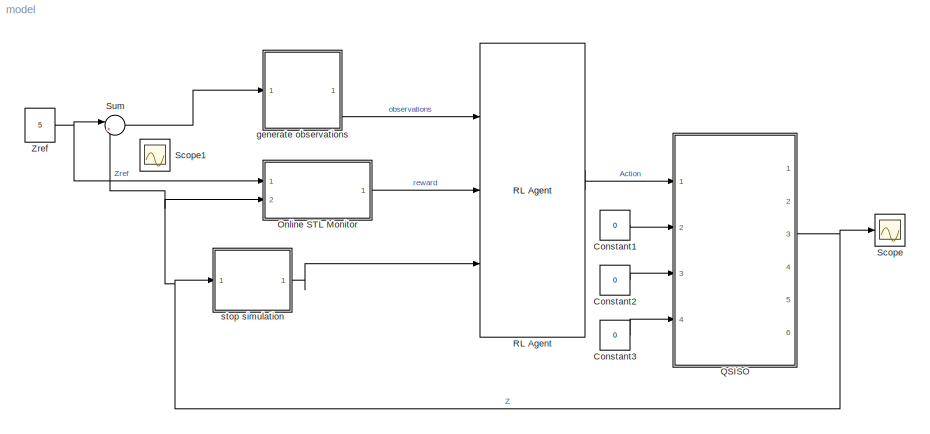
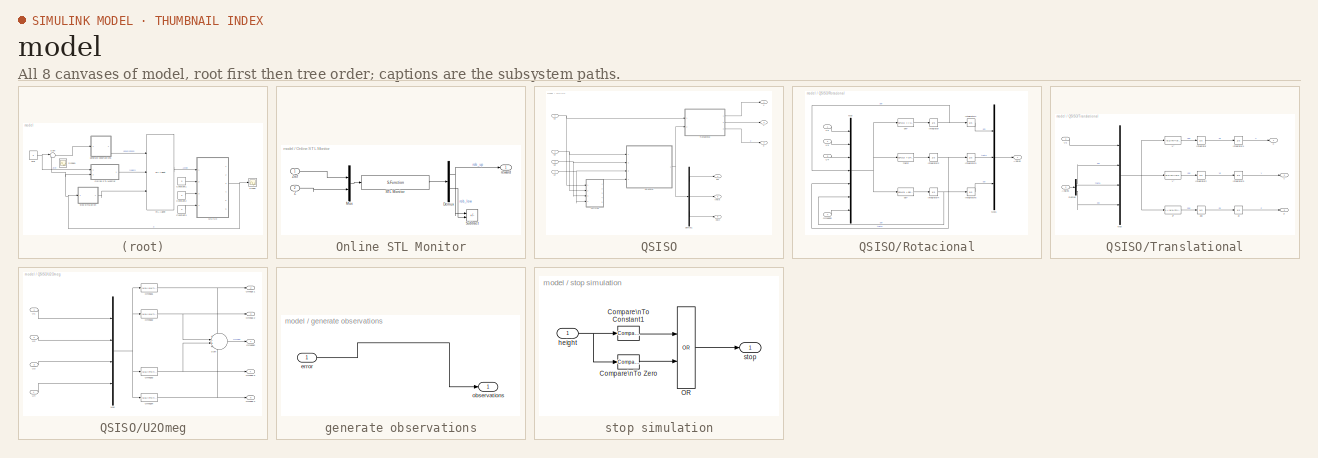
[diagram: thumbnail index - all 8 canvases of the model, root first then tree order]
MODEL model
KIND model
BLOCK [Constant] Constant1
  SID = 105
  Value = 0
BLOCK [Constant] Constant2
  SID = 106
  Value = 0
BLOCK [Constant] Constant3
  SID = 107
  Value = 0
BLOCK [SubSystem] Online STL Monitor
  Ports = [2, 1]
  RequestExecContextInheritance = off
  SID = 266
BLOCK [Demux] Online STL Monitor/Demux
  Outputs = 2
  Ports = [1, 2]
  SID = 270
BLOCK [Mux] Online STL Monitor/Mux
  DisplayOption = bar
  Inputs = 2
  Ports = [2, 1]
  SID = 271
BLOCK [S-Function] Online STL Monitor/STL Monitor
  EnableBusSupport = off
  FunctionName = onlineMonitorWrapper
  Parameters = SignalNames, STLString, MaxRob,RefreshRate
  Ports = [1, 1]
  SFcnIsStateOwnerBlock = off
  SFunctionDeploymentMode = off
  SID = 289
BLOCK [Sum] Online STL Monitor/Subtract
  IconShape = rectangular
  Inputs = +-
  Ports = [2, 1]
  SID = 279
BLOCK [Inport] Online STL Monitor/Z
  Port = 2
  SID = 268
BLOCK [Inport] Online STL Monitor/Zref
  SID = 267
BLOCK [Outport] Online STL Monitor/reward
  SID = 288
BLOCK [SubSystem] QSISO
  Ports = [4, 6]
  RequestExecContextInheritance = off
  SID = 170
BLOCK [Demux] QSISO/Demux1
  Outputs = 3
  Ports = [1, 3]
  SID = 175
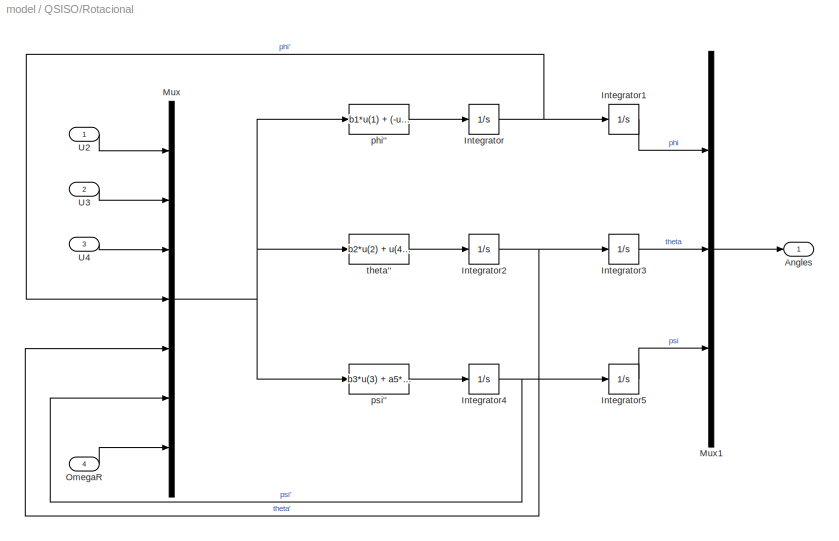
BLOCK [SubSystem] QSISO/Rotacional
  Ports = [4, 1]
  RequestExecContextInheritance = off
  SID = 176
BLOCK [Outport] QSISO/Rotacional/Angles
  SID = 192
BLOCK [Integrator] QSISO/Rotacional/Integrator
  Ports = [1, 1]
  SID = 181
BLOCK [Integrator] QSISO/Rotacional/Integrator1
  Ports = [1, 1]
  SID = 182
BLOCK [Integrator] QSISO/Rotacional/Integrator2
  Ports = [1, 1]
  SID = 183
BLOCK [Integrator] QSISO/Rotacional/Integrator3
  Ports = [1, 1]
  SID = 184
BLOCK [Integrator] QSISO/Rotacional/Integrator4
  Ports = [1, 1]
  SID = 185
BLOCK [Integrator] QSISO/Rotacional/Integrator5
  Ports = [1, 1]
  SID = 186
BLOCK [Mux] QSISO/Rotacional/Mux
  DisplayOption = bar
  Inputs = 7
  Ports = [7, 1]
  SID = 187
BLOCK [Mux] QSISO/Rotacional/Mux1
  DisplayOption = bar
  Inputs = 3
  Ports = [3, 1]
  SID = 188
BLOCK [Inport] QSISO/Rotacional/OmegaR
  Port = 4
  SID = 180
BLOCK [Inport] QSISO/Rotacional/U2
  SID = 177
BLOCK [Inport] QSISO/Rotacional/U3
  Port = 2
  SID = 178
BLOCK [Inport] QSISO/Rotacional/U4
  Port = 3
  SID = 179
BLOCK [Fcn] QSISO/Rotacional/phi''
  Expr = b1*u(1) + (-u(5))*u(7)*a2 + a1*u(5)*u(6)
  SID = 189
BLOCK [Fcn] QSISO/Rotacional/psi''
  Expr = b3*u(3) + a5*u(4)*u(5)
  SID = 190
BLOCK [Fcn] QSISO/Rotacional/theta''
  Expr = b2*u(2) + u(4)*u(7)*a4 + a3*u(4)*u(6)
  SID = 191
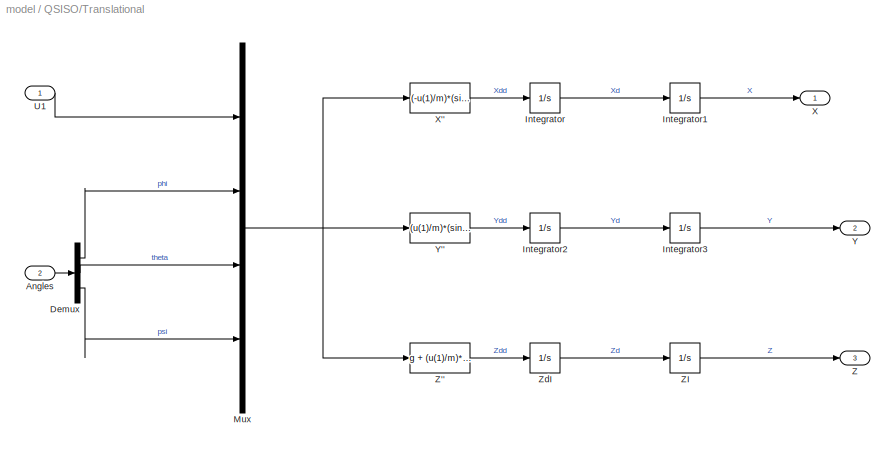
BLOCK [SubSystem] QSISO/Translational
  Ports = [2, 3]
  RequestExecContextInheritance = off
  SID = 193
BLOCK [Inport] QSISO/Translational/Angles
  Port = 2
  SID = 195
BLOCK [Demux] QSISO/Translational/Demux
  Outputs = 3
  Ports = [1, 3]
  SID = 196
BLOCK [Integrator] QSISO/Translational/Integrator
  Ports = [1, 1]
  SID = 197
BLOCK [Integrator] QSISO/Translational/Integrator1
  Ports = [1, 1]
  SID = 198
BLOCK [Integrator] QSISO/Translational/Integrator2
  Ports = [1, 1]
  SID = 199
BLOCK [Integrator] QSISO/Translational/Integrator3
  Ports = [1, 1]
  SID = 200
BLOCK [Mux] QSISO/Translational/Mux
  DisplayOption = bar
  Ports = [4, 1]
  SID = 203
BLOCK [Inport] QSISO/Translational/U1
  SID = 194
BLOCK [Outport] QSISO/Translational/X
  SID = 207
BLOCK [Fcn] QSISO/Translational/X''
  Expr = (-u(1)/m)*(sin(u(2))*sin(u(4)) + cos(u(2))*sin(u(3))*cos(u(4)))
  SID = 204
BLOCK [Outport] QSISO/Translational/Y
  Port = 2
  SID = 208
BLOCK [Fcn] QSISO/Translational/Y''
  Expr = (u(1)/m)*(sin(u(2))*cos(u(4)) - cos(u(2))*sin(u(3))*sin(u(4)))
  SID = 205
BLOCK [Outport] QSISO/Translational/Z
  Port = 3
  SID = 209
BLOCK [Fcn] QSISO/Translational/Z''
  Expr = g + (u(1)/m)*(cos(u(2))*cos(u(3)))
  SID = 206
BLOCK [Integrator] QSISO/Translational/ZI
  InitialCondition = 4.2218
  LowerSaturationLimit = 0
  Ports = [1, 1]
  SID = 202
BLOCK [Integrator] QSISO/Translational/ZdI
  LowerSaturationLimit = 0
  Ports = [1, 1]
  SID = 201
BLOCK [Inport] QSISO/U1
  SID = 171
BLOCK [Inport] QSISO/U2
  Port = 2
  SID = 172
BLOCK [SubSystem] QSISO/U2Omeg
  Ports = [4, 5]
  RequestExecContextInheritance = off
  SID = 210
BLOCK [Mux] QSISO/U2Omeg/Mux
  DisplayOption = bar
  Ports = [4, 1]
  SID = 215
BLOCK [Outport] QSISO/U2Omeg/Omega 1
  Port = 2
  SID = 222
BLOCK [Outport] QSISO/U2Omeg/Omega 2
  Port = 3
  SID = 223
BLOCK [Outport] QSISO/U2Omeg/Omega 3
  Port = 4
  SID = 224
BLOCK [Outport] QSISO/U2Omeg/Omega 4
  Port = 5
  SID = 225
BLOCK [Fcn] QSISO/U2Omeg/Omega1
  Expr = ((u(1)/(4*Kf)) + (u(3)/(2*Kf)) + (u(4)/(4*Km)))^(1/2)
  SID = 216
BLOCK [Fcn] QSISO/U2Omeg/Omega2
  Expr = ((u(1)/(4*Kf)) - (u(2)/(2*Kf)) - (u(4)/(4*Km)))^(1/2)
  SID = 217
BLOCK [Fcn] QSISO/U2Omeg/Omega3
  Expr = ((u(1)/(4*Kf)) - (u(3)/(2*Kf)) + (u(4)/(4*Km)))^(1/2)
  SID = 218
BLOCK [Fcn] QSISO/U2Omeg/Omega4
  Expr = ((u(1)/(4*Kf)) + (u(2)/(2*Kf)) - (u(4)/(4*Km)))^(1/2)
  SID = 219
BLOCK [Outport] QSISO/U2Omeg/OmegaR
  SID = 221
BLOCK [Sum] QSISO/U2Omeg/Sum
  Inputs = +-+-
  Ports = [4, 1]
  SID = 220
BLOCK [Inport] QSISO/U2Omeg/U1 
  SID = 211
BLOCK [Inport] QSISO/U2Omeg/U2 
  Port = 2
  SID = 212
BLOCK [Inport] QSISO/U2Omeg/U3 
  Port = 3
  SID = 213
BLOCK [Inport] QSISO/U2Omeg/U4 
  Port = 4
  SID = 214
BLOCK [Inport] QSISO/U3
  Port = 3
  SID = 173
BLOCK [Inport] QSISO/U4
  Port = 4
  SID = 174
BLOCK [Outport] QSISO/X
  SID = 226
BLOCK [Outport] QSISO/Y
  Port = 2
  SID = 227
BLOCK [Outport] QSISO/Z
  Port = 3
  SID = 228
BLOCK [Outport] QSISO/phi
  Port = 4
  SID = 229
BLOCK [Outport] QSISO/psi\n
  Port = 6
  SID = 231
BLOCK [Outport] QSISO/theta
  Port = 5
  SID = 230
BLOCK [Reference] RL Agent  REF=rllib/RL Agent
  Agent = agent
  ExternalActionAsInput = off
  Ports = [3, 1]
  ProvideCumRwd = off
  RTWMemSecDataConstants = Inherit from model
  RTWMemSecDataInternal = Inherit from model
  RTWMemSecDataParameters = Inherit from model
  RTWMemSecFuncExecute = Inherit from model
  RTWMemSecFuncInitTerm = Inherit from model
  SID = 144
  SourceBlock = rllib/RL Agent
  SourceProductBaseCode = RL
  SourceType = RL Agent
  TreatAsDirectFeedthrough = on
BLOCK [Scope] Scope
  Floating = off
  NumInputPorts = 1
  Ports = [1]
  SID = 262
  ScopeSpecificationString = Simulink.scopes.TimeScopeBlockCfg('CurrentConfiguration', extmgr.ConfigurationSet(extmgr.Configuration('Core','General UI',true),extmgr.Configuration('Core','Source UI',true),extmgr.Configuration('Sources','WiredSimulink',true),extmgr.Configuration('Visuals','Time Domain',true),extmgr.Configuration('Tools','Plot Navigation',true),extmgr.Configuration('Tools','Measurements',true)),'Version','2020a'...<+1ch>
BLOCK [Scope] Scope1
  Floating = off
  IOType = viewer
  NumInputPorts = 1
  Ports = []
  SID = 290
  ScopeSpecificationString = Simulink.scopes.TimeScopeBlockCfg('CurrentConfiguration', extmgr.ConfigurationSet(extmgr.Configuration('Core','General UI',true),extmgr.Configuration('Core','Source UI',true),extmgr.Configuration('Sources','WiredSimulink',true,'DataLoggingVariableName','ScopeData1'),extmgr.Configuration('Visuals','Time Domain',true,'SerializedDisplays',{struct('MinYLimReal','-20.22272','MaxYLimReal','113.35808','Y...<+1398ch>
BLOCK [Sum] Sum
  Inputs = |+-
  Ports = [2, 1]
  SID = 280
BLOCK [Constant] Zref
  SID = 145
  Value = 5
BLOCK [SubSystem] generate observations
  Ports = [1, 1]
  RequestExecContextInheritance = off
  SID = 157
BLOCK [Inport] generate observations/error
  SID = 282
BLOCK [Outport] generate observations/observations
  SID = 286
  VectorParamsAs1DForOutWhenUnconnected = off
BLOCK [SubSystem] stop simulation
  Ports = [1, 1]
  RequestExecContextInheritance = off
  SID = 163
BLOCK [Reference] stop simulation/Compare\nTo Constant1  REF=simulink/Logic and Bit\nOperations/Compare\nTo Constant
  OutDataTypeStr = boolean
  Ports = [1, 1]
  RTWMemSecDataConstants = Inherit from model
  RTWMemSecDataInternal = Inherit from model
  RTWMemSecDataParameters = Inherit from model
  RTWMemSecFuncExecute = Inherit from model
  RTWMemSecFuncInitTerm = Inherit from model
  SID = 250
  SourceBlock = simulink/Logic and Bit\nOperations/Compare\nTo Constant
  SourceProductBaseCode = SL
  SourceType = Compare To Constant
  ZeroCross = on
  const = 10
  relop = >=
BLOCK [Reference] stop simulation/Compare\nTo Zero  REF=simulink/Logic and Bit\nOperations/Compare\nTo Zero
  OutDataTypeStr = boolean
  Ports = [1, 1]
  RTWMemSecDataConstants = Inherit from model
  RTWMemSecDataInternal = Inherit from model
  RTWMemSecDataParameters = Inherit from model
  RTWMemSecFuncExecute = Inherit from model
  RTWMemSecFuncInitTerm = Inherit from model
  SID = 251
  SourceBlock = simulink/Logic and Bit\nOperations/Compare\nTo Zero
  SourceProductBaseCode = SL
  SourceType = Compare To Zero
  ZeroCross = on
  relop = <=
BLOCK [Logic] stop simulation/OR
  AllPortsSameDT = off
  IconShape = distinctive
  Operator = OR
  OutDataTypeStr = boolean
  Ports = [2, 1]
  SID = 252
BLOCK [Inport] stop simulation/height
  SID = 249
BLOCK [Outport] stop simulation/stop
  SID = 253
  VectorParamsAs1DForOutWhenUnconnected = off
LINE Constant1:1 -> QSISO:2
LINE Constant2:1 -> QSISO:3
LINE Constant3:1 -> QSISO:4
NET Online STL Monitor/Demux:1 -> Online STL Monitor/Subtract:1, Online STL Monitor/reward:1
LINE Online STL Monitor/Demux:2 -> Online STL Monitor/Subtract:2
LINE Online STL Monitor/Mux:1 -> Online STL Monitor/STL Monitor:1
LINE Online STL Monitor/STL Monitor:1 -> Online STL Monitor/Demux:1
LINE Online STL Monitor/Z:1 -> Online STL Monitor/Mux:2
LINE Online STL Monitor/Zref:1 -> Online STL Monitor/Mux:1
LINE Online STL Monitor:1 -> RL Agent:2
LINE QSISO/Demux1:1 -> QSISO/phi:1
LINE QSISO/Demux1:2 -> QSISO/theta:1
LINE QSISO/Demux1:3 -> QSISO/psi\n:1
LINE QSISO/Rotacional/Integrator1:1 -> QSISO/Rotacional/Mux1:1
NET QSISO/Rotacional/Integrator2:1 -> QSISO/Rotacional/Integrator3:1, QSISO/Rotacional/Mux:5
LINE QSISO/Rotacional/Integrator3:1 -> QSISO/Rotacional/Mux1:2
NET QSISO/Rotacional/Integrator4:1 -> QSISO/Rotacional/Integrator5:1, QSISO/Rotacional/Mux:6
LINE QSISO/Rotacional/Integrator5:1 -> QSISO/Rotacional/Mux1:3
NET QSISO/Rotacional/Integrator:1 -> QSISO/Rotacional/Integrator1:1, QSISO/Rotacional/Mux:4
LINE QSISO/Rotacional/Mux1:1 -> QSISO/Rotacional/Angles:1
NET QSISO/Rotacional/Mux:1 -> QSISO/Rotacional/phi'':1, QSISO/Rotacional/psi'':1, QSISO/Rotacional/theta'':1
LINE QSISO/Rotacional/OmegaR:1 -> QSISO/Rotacional/Mux:7
LINE QSISO/Rotacional/U2:1 -> QSISO/Rotacional/Mux:1
LINE QSISO/Rotacional/U3:1 -> QSISO/Rotacional/Mux:2
LINE QSISO/Rotacional/U4:1 -> QSISO/Rotacional/Mux:3
LINE QSISO/Rotacional/phi'':1 -> QSISO/Rotacional/Integrator:1
LINE QSISO/Rotacional/psi'':1 -> QSISO/Rotacional/Integrator4:1
LINE QSISO/Rotacional/theta'':1 -> QSISO/Rotacional/Integrator2:1
NET QSISO/Rotacional:1 -> QSISO/Demux1:1, QSISO/Translational:2
LINE QSISO/Translational/Angles:1 -> QSISO/Translational/Demux:1
LINE QSISO/Translational/Demux:1 -> QSISO/Translational/Mux:2
LINE QSISO/Translational/Demux:2 -> QSISO/Translational/Mux:3
LINE QSISO/Translational/Demux:3 -> QSISO/Translational/Mux:4
LINE QSISO/Translational/Integrator1:1 -> QSISO/Translational/X:1
LINE QSISO/Translational/Integrator2:1 -> QSISO/Translational/Integrator3:1
LINE QSISO/Translational/Integrator3:1 -> QSISO/Translational/Y:1
LINE QSISO/Translational/Integrator:1 -> QSISO/Translational/Integrator1:1
NET QSISO/Translational/Mux:1 -> QSISO/Translational/X'':1, QSISO/Translational/Y'':1, QSISO/Translational/Z'':1
LINE QSISO/Translational/U1:1 -> QSISO/Translational/Mux:1
LINE QSISO/Translational/X'':1 -> QSISO/Translational/Integrator:1
LINE QSISO/Translational/Y'':1 -> QSISO/Translational/Integrator2:1
LINE QSISO/Translational/Z'':1 -> QSISO/Translational/ZdI:1
LINE QSISO/Translational/ZI:1 -> QSISO/Translational/Z:1
LINE QSISO/Translational/ZdI:1 -> QSISO/Translational/ZI:1
LINE QSISO/Translational:1 -> QSISO/X:1
LINE QSISO/Translational:2 -> QSISO/Y:1
LINE QSISO/Translational:3 -> QSISO/Z:1
NET QSISO/U1:1 -> QSISO/Translational:1, QSISO/U2Omeg:1
NET QSISO/U2:1 -> QSISO/Rotacional:1, QSISO/U2Omeg:2
NET QSISO/U2Omeg/Mux:1 -> QSISO/U2Omeg/Omega1:1, QSISO/U2Omeg/Omega2:1, QSISO/U2Omeg/Omega3:1, QSISO/U2Omeg/Omega4:1
NET QSISO/U2Omeg/Omega1:1 -> QSISO/U2Omeg/Omega 1:1, QSISO/U2Omeg/Sum:1
NET QSISO/U2Omeg/Omega2:1 -> QSISO/U2Omeg/Omega 2:1, QSISO/U2Omeg/Sum:2
NET QSISO/U2Omeg/Omega3:1 -> QSISO/U2Omeg/Omega 3:1, QSISO/U2Omeg/Sum:3
NET QSISO/U2Omeg/Omega4:1 -> QSISO/U2Omeg/Omega 4:1, QSISO/U2Omeg/Sum:4
LINE QSISO/U2Omeg/Sum:1 -> QSISO/U2Omeg/OmegaR:1
LINE QSISO/U2Omeg/U1 :1 -> QSISO/U2Omeg/Mux:1
LINE QSISO/U2Omeg/U2 :1 -> QSISO/U2Omeg/Mux:2
LINE QSISO/U2Omeg/U3 :1 -> QSISO/U2Omeg/Mux:3
LINE QSISO/U2Omeg/U4 :1 -> QSISO/U2Omeg/Mux:4
LINE QSISO/U2Omeg:1 -> QSISO/Rotacional:4
NET QSISO/U3:1 -> QSISO/Rotacional:2, QSISO/U2Omeg:3
NET QSISO/U4:1 -> QSISO/Rotacional:3, QSISO/U2Omeg:4
NET QSISO:3 -> Online STL Monitor:2, Scope:1, Sum:2, stop simulation:1
LINE RL Agent:1 -> QSISO:1
LINE Sum:1 -> generate observations:1
NET Zref:1 -> Online STL Monitor:1, Sum:1
LINE generate observations/error:1 -> generate observations/observations:1
LINE generate observations:1 -> RL Agent:1
LINE stop simulation/Compare\nTo Constant1:1 -> stop simulation/OR:1
LINE stop simulation/Compare\nTo Zero:1 -> stop simulation/OR:2
LINE stop simulation/OR:1 -> stop simulation/stop:1
NET stop simulation/height:1 -> stop simulation/Compare\nTo Constant1:1, stop simulation/Compare\nTo Zero:1
LINE stop simulation:1 -> RL Agent:3
note: NET lines group one-source signal fan-out (src -> all destinations, sorted); 1:1 wires keep LINE
